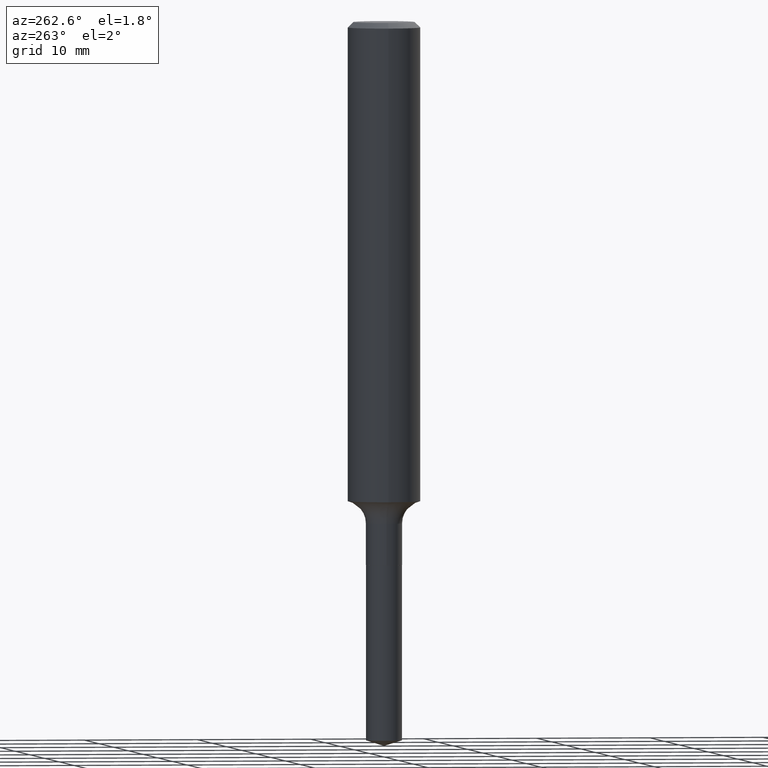
[diagram: clean part render]
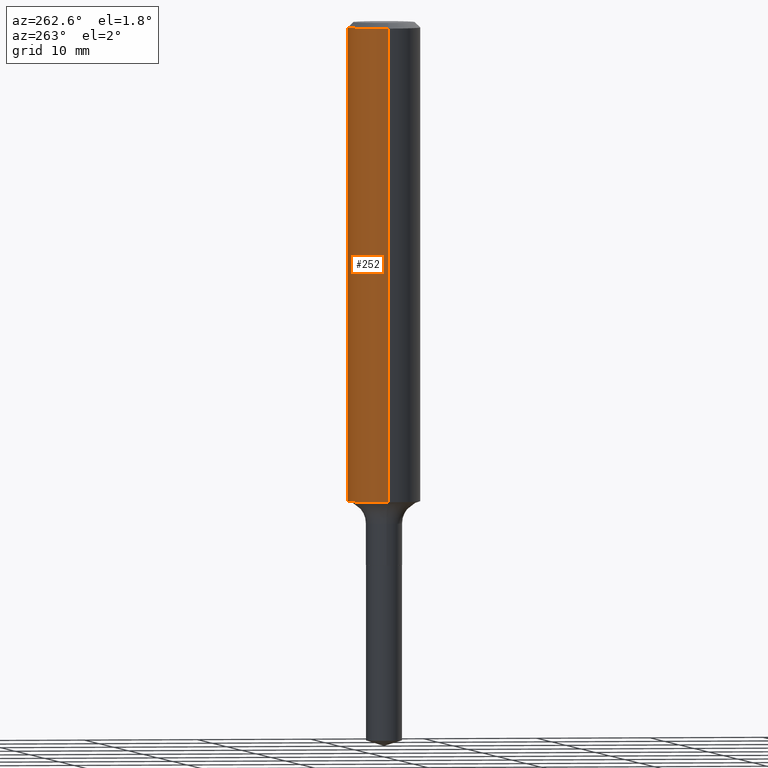
[diagram: same view with one face highlighted and labeled with its STEP entity id]
A machine part, auxiliary view. The second image highlights one B-rep face of the part: STEP entity #252.
In plain terms, the highlighted cylindrical surface (edge-blend (fillet) strip) has radius 3.175 mm, axis along (-0, 0, 1).
Its self-contained STEP definition (entity closure, byte-faithful):
#2 = ORIENTED_EDGE ( 'NONE', *, *, #417, .T. ) ;
#13 = FACE_OUTER_BOUND ( 'NONE', #339, .T. ) ;
#22 = CARTESIAN_POINT ( 'NONE',  ( 4.046653142340180452E-29, -5.777548213052970297E-15, -1.654755575742896889 ) ) ;
#42 = CARTESIAN_POINT ( 'NONE',  ( -0.1250000000000001110, 8.881784197001260212E-16, -6.148668862818637832E-30 ) ) ;
#60 = DIRECTION ( 'NONE',  ( -2.445468806185136597E-29, 3.491481338843145583E-15, 1.000000000000000000 ) ) ;
#63 = DIRECTION ( 'NONE',  ( -2.445468806185136597E-29, 3.491481338843145583E-15, 1.000000000000000000 ) ) ;
#64 = CARTESIAN_POINT ( 'NONE',  ( 0.1250000000000000000, -9.383356098140928781E-16, -0.01875000000000013461 ) ) ;
#68 = CARTESIAN_POINT ( 'NONE',  ( 0.000000000000000000, 0.000000000000000000, 0.000000000000000000 ) ) ;
#93 = VECTOR ( 'NONE', #117, 39.37007874015748143 ) ;
#117 = DIRECTION ( 'NONE',  ( -2.445468806185136877E-29, 3.491481338843145188E-15, 1.000000000000000000 ) ) ;
#118 = AXIS2_PLACEMENT_3D ( 'NONE', #397, #60, #357 ) ;
#121 = VERTEX_POINT ( 'NONE', #64 ) ;
#122 = VERTEX_POINT ( 'NONE', #364 ) ;
#124 = EDGE_CURVE ( 'NONE', #164, #309, #254, .T. ) ;
#137 = DIRECTION ( 'NONE',  ( -2.445468806185136877E-29, 3.491481338843145188E-15, 1.000000000000000000 ) ) ;
#140 = CYLINDRICAL_SURFACE ( 'NONE', #312, 0.1250000000000001110 ) ;
#147 = ORIENTED_EDGE ( 'NONE', *, *, #268, .F. ) ;
#148 = EDGE_CURVE ( 'NONE', #121, #122, #325, .T. ) ;
#164 = VERTEX_POINT ( 'NONE', #253 ) ;
#169 = DIRECTION ( 'NONE',  ( 1.000000000000000000, -6.982962677686266711E-15, 4.876176775795935232E-29 ) ) ;
#201 = CARTESIAN_POINT ( 'NONE',  ( 0.1250000000000001110, -8.728703347107841277E-16, 6.095220969744924646E-30 ) ) ;
#204 = LINE ( 'NONE', #201, #336 ) ;
#252 = ADVANCED_FACE ( 'NONE', ( #13 ), #140, .T. ) ;
#253 = CARTESIAN_POINT ( 'NONE',  ( 0.1250000000000001943, -6.650418547763754425E-15, -1.654755575742896889 ) ) ;
#254 = CIRCLE ( 'NONE', #426, 0.1250000000000001943 ) ;
#259 = DIRECTION ( 'NONE',  ( 1.000000000000000000, -6.982962677686267499E-15, 0.000000000000000000 ) ) ;
#268 = EDGE_CURVE ( 'NONE', #164, #121, #204, .T. ) ;
#293 = DIRECTION ( 'NONE',  ( -2.445468806185136597E-29, 3.491481338843145583E-15, 1.000000000000000000 ) ) ;
#309 = VERTEX_POINT ( 'NONE', #402 ) ;
#312 = AXIS2_PLACEMENT_3D ( 'NONE', #68, #63, #169 ) ;
#325 = CIRCLE ( 'NONE', #118, 0.1250000000000000000 ) ;
#336 = VECTOR ( 'NONE', #137, 39.37007874015748143 ) ;
#339 = EDGE_LOOP ( 'NONE', ( #415, #2, #377, #147 ) ) ;
#357 = DIRECTION ( 'NONE',  ( 1.000000000000000000, -6.982962677686266711E-15, 0.000000000000000000 ) ) ;
#364 = CARTESIAN_POINT ( 'NONE',  ( -0.1250000000000000000, -2.033328324378012517E-15, -0.01875000000000013461 ) ) ;
#377 = ORIENTED_EDGE ( 'NONE', *, *, #148, .F. ) ;
#381 = LINE ( 'NONE', #42, #93 ) ;
#397 = CARTESIAN_POINT ( 'NONE',  ( 4.585254011597163874E-31, -6.546527510330944066E-17, -0.01875000000000013461 ) ) ;
#402 = CARTESIAN_POINT ( 'NONE',  ( -0.1250000000000001943, -4.889369793352843487E-15, -1.654755575742896889 ) ) ;
#415 = ORIENTED_EDGE ( 'NONE', *, *, #124, .T. ) ;
#417 = EDGE_CURVE ( 'NONE', #309, #122, #381, .T. ) ;
#426 = AXIS2_PLACEMENT_3D ( 'NONE', #22, #293, #259 ) ;